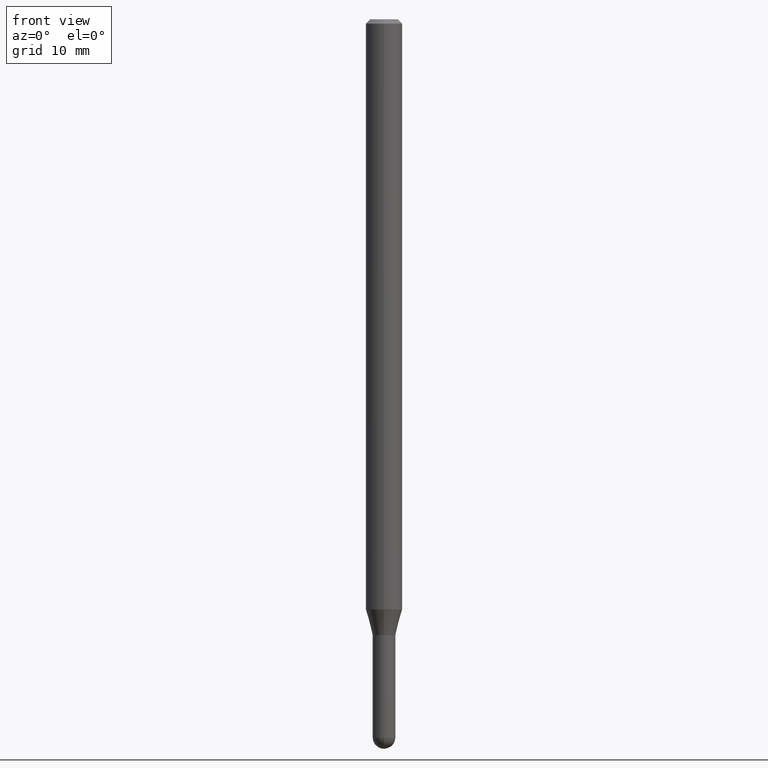
[diagram: clean part render]
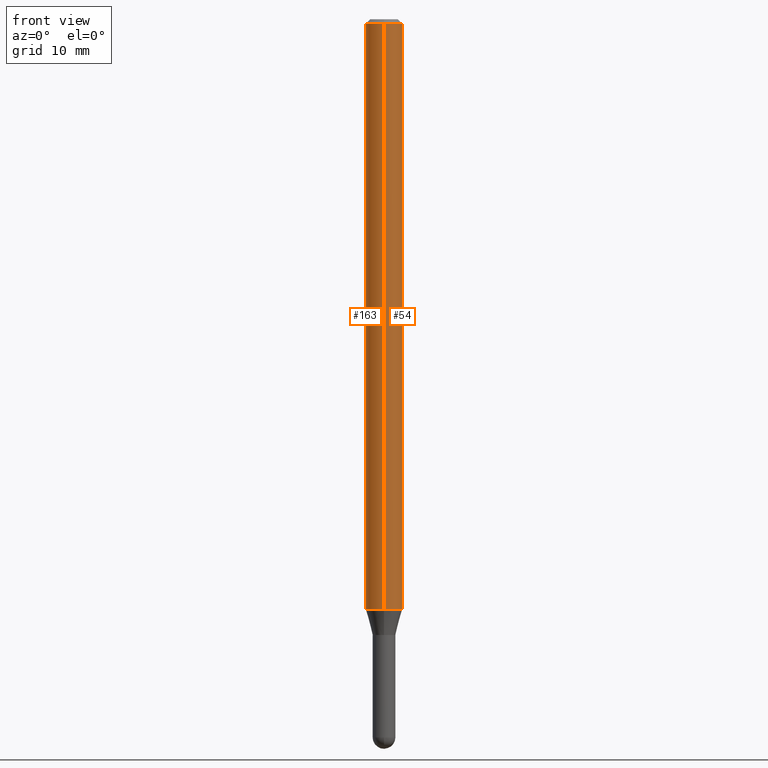
[diagram: same view with one multi-face feature highlighted, each face labeled with its STEP entity id]
A machine part, front view. The highlighted faces form ONE feature: a constant-radius fillet chain: 2 tangent blend faces with common blend radius 1.5875 mm. The faces share edges in the B-rep.
Their STEP definitions:
[1] entity #54 (Cylinder):
#12 = VECTOR ( 'NONE', #37, 39.37007874015748143 ) ;
#14 = FACE_OUTER_BOUND ( 'NONE', #507, .T. ) ;
#16 = CYLINDRICAL_SURFACE ( 'NONE', #347, 0.06250000000000000000 ) ;
#18 = DIRECTION ( 'NONE',  ( -6.982962677686265922E-15, -1.000000000000000000, 4.370956789862821150E-15 ) ) ;
#37 = DIRECTION ( 'NONE',  ( -2.445500960976067798E-29, 3.491435291352395379E-15, 1.000000000000000000 ) ) ;
#54 = ADVANCED_FACE ( 'NONE', ( #14 ), #16, .T. ) ;
#59 = DIRECTION ( 'NONE',  ( -2.445500960976067798E-29, 3.491435291352395379E-15, 1.000000000000000000 ) ) ;
#80 = ORIENTED_EDGE ( 'NONE', *, *, #133, .T. ) ;
#84 = ORIENTED_EDGE ( 'NONE', *, *, #342, .F. ) ;
#87 = CARTESIAN_POINT ( 'NONE',  ( 0.000000000000000000, 0.000000000000000000, 0.000000000000000000 ) ) ;
#89 = DIRECTION ( 'NONE',  ( -6.982962677686265922E-15, -1.000000000000000000, 3.491435291352395379E-15 ) ) ;
#106 = VERTEX_POINT ( 'NONE', #445 ) ;
#112 = DIRECTION ( 'NONE',  ( -2.445500960976067798E-29, 3.491435291352395379E-15, 1.000000000000000000 ) ) ;
#133 = EDGE_CURVE ( 'NONE', #312, #149, #443, .T. ) ;
#134 = CIRCLE ( 'NONE', #282, 0.06250000000000000000 ) ;
#149 = VERTEX_POINT ( 'NONE', #224 ) ;
#154 = DIRECTION ( 'NONE',  ( -2.445500960976067798E-29, 3.491435291352395379E-15, 1.000000000000000000 ) ) ;
#198 = CARTESIAN_POINT ( 'NONE',  ( -4.364351673553916201E-16, -0.06250000000000000000, 2.182147057095247112E-16 ) ) ;
#203 = DIRECTION ( 'NONE',  ( -2.445500960976067798E-29, 3.491435291352395379E-15, 1.000000000000000000 ) ) ;
#224 = CARTESIAN_POINT ( 'NONE',  ( 4.440892098501117228E-16, 0.06249999999999289457, -2.022296806022132909 ) ) ;
#241 = ORIENTED_EDGE ( 'NONE', *, *, #412, .T. ) ;
#281 = CARTESIAN_POINT ( 'NONE',  ( 4.440892098500625669E-16, 0.06250000000000000000, -2.182147057095247112E-16 ) ) ;
#282 = AXIS2_PLACEMENT_3D ( 'NONE', #434, #112, #464 ) ;
#287 = ORIENTED_EDGE ( 'NONE', *, *, #295, .F. ) ;
#294 = CARTESIAN_POINT ( 'NONE',  ( 4.945528782505957830E-29, -7.060718438134903621E-15, -2.022296806022132909 ) ) ;
#295 = EDGE_CURVE ( 'NONE', #312, #345, #392, .T. ) ;
#312 = VERTEX_POINT ( 'NONE', #508 ) ;
#342 = EDGE_CURVE ( 'NONE', #345, #106, #134, .T. ) ;
#345 = VERTEX_POINT ( 'NONE', #496 ) ;
#347 = AXIS2_PLACEMENT_3D ( 'NONE', #87, #203, #89 ) ;
#387 = VECTOR ( 'NONE', #154, 39.37007874015748143 ) ;
#392 = LINE ( 'NONE', #198, #12 ) ;
#412 = EDGE_CURVE ( 'NONE', #149, #106, #497, .T. ) ;
#415 = AXIS2_PLACEMENT_3D ( 'NONE', #294, #59, #18 ) ;
#434 = CARTESIAN_POINT ( 'NONE',  ( 3.668251441464117918E-31, -5.237152937028615846E-17, -0.01500000000000006710 ) ) ;
#443 = CIRCLE ( 'NONE', #415, 0.06250000000000000000 ) ;
#445 = CARTESIAN_POINT ( 'NONE',  ( 4.440892098501123144E-16, 0.06249999999999995143, -0.01500000000000028394 ) ) ;
#464 = DIRECTION ( 'NONE',  ( -6.982962677686265922E-15, -1.000000000000000000, 3.483106191921935554E-15 ) ) ;
#496 = CARTESIAN_POINT ( 'NONE',  ( -4.364351673553912750E-16, -0.06250000000000005551, -0.01499999999999984852 ) ) ;
#497 = LINE ( 'NONE', #281, #387 ) ;
#507 = EDGE_LOOP ( 'NONE', ( #80, #241, #84, #287 ) ) ;
#508 = CARTESIAN_POINT ( 'NONE',  ( -4.364351673553424642E-16, -0.06250000000000709155, -2.022296806022132465 ) ) ;
[2] entity #163 (Cylinder):
#12 = VECTOR ( 'NONE', #37, 39.37007874015748143 ) ;
#37 = DIRECTION ( 'NONE',  ( -2.445500960976067798E-29, 3.491435291352395379E-15, 1.000000000000000000 ) ) ;
#74 = EDGE_LOOP ( 'NONE', ( #354, #130, #119, #125 ) ) ;
#97 = CARTESIAN_POINT ( 'NONE',  ( 0.000000000000000000, 0.000000000000000000, 0.000000000000000000 ) ) ;
#106 = VERTEX_POINT ( 'NONE', #445 ) ;
#119 = ORIENTED_EDGE ( 'NONE', *, *, #295, .T. ) ;
#125 = ORIENTED_EDGE ( 'NONE', *, *, #418, .F. ) ;
#128 = AXIS2_PLACEMENT_3D ( 'NONE', #97, #214, #141 ) ;
#130 = ORIENTED_EDGE ( 'NONE', *, *, #201, .T. ) ;
#141 = DIRECTION ( 'NONE',  ( -6.982962677686265922E-15, -1.000000000000000000, 3.491435291352395379E-15 ) ) ;
#144 = CARTESIAN_POINT ( 'NONE',  ( 3.668251441464117918E-31, -5.237152937028615846E-17, -0.01500000000000006710 ) ) ;
#149 = VERTEX_POINT ( 'NONE', #224 ) ;
#154 = DIRECTION ( 'NONE',  ( -2.445500960976067798E-29, 3.491435291352395379E-15, 1.000000000000000000 ) ) ;
#163 = ADVANCED_FACE ( 'NONE', ( #216 ), #260, .T. ) ;
#169 = CIRCLE ( 'NONE', #237, 0.06250000000000000000 ) ;
#175 = DIRECTION ( 'NONE',  ( -2.445500960976067798E-29, 3.491435291352395379E-15, 1.000000000000000000 ) ) ;
#198 = CARTESIAN_POINT ( 'NONE',  ( -4.364351673553916201E-16, -0.06250000000000000000, 2.182147057095247112E-16 ) ) ;
#201 = EDGE_CURVE ( 'NONE', #149, #312, #270, .T. ) ;
#211 = AXIS2_PLACEMENT_3D ( 'NONE', #449, #175, #491 ) ;
#214 = DIRECTION ( 'NONE',  ( -2.445500960976067798E-29, 3.491435291352395379E-15, 1.000000000000000000 ) ) ;
#216 = FACE_OUTER_BOUND ( 'NONE', #74, .T. ) ;
#224 = CARTESIAN_POINT ( 'NONE',  ( 4.440892098501117228E-16, 0.06249999999999289457, -2.022296806022132909 ) ) ;
#237 = AXIS2_PLACEMENT_3D ( 'NONE', #144, #315, #500 ) ;
#260 = CYLINDRICAL_SURFACE ( 'NONE', #128, 0.06250000000000000000 ) ;
#270 = CIRCLE ( 'NONE', #211, 0.06250000000000000000 ) ;
#281 = CARTESIAN_POINT ( 'NONE',  ( 4.440892098500625669E-16, 0.06250000000000000000, -2.182147057095247112E-16 ) ) ;
#295 = EDGE_CURVE ( 'NONE', #312, #345, #392, .T. ) ;
#312 = VERTEX_POINT ( 'NONE', #508 ) ;
#315 = DIRECTION ( 'NONE',  ( -2.445500960976067798E-29, 3.491435291352395379E-15, 1.000000000000000000 ) ) ;
#345 = VERTEX_POINT ( 'NONE', #496 ) ;
#354 = ORIENTED_EDGE ( 'NONE', *, *, #412, .F. ) ;
#387 = VECTOR ( 'NONE', #154, 39.37007874015748143 ) ;
#392 = LINE ( 'NONE', #198, #12 ) ;
#412 = EDGE_CURVE ( 'NONE', #149, #106, #497, .T. ) ;
#418 = EDGE_CURVE ( 'NONE', #106, #345, #169, .T. ) ;
#445 = CARTESIAN_POINT ( 'NONE',  ( 4.440892098501123144E-16, 0.06249999999999995143, -0.01500000000000028394 ) ) ;
#449 = CARTESIAN_POINT ( 'NONE',  ( 4.945528782505957830E-29, -7.060718438134903621E-15, -2.022296806022132909 ) ) ;
#491 = DIRECTION ( 'NONE',  ( -6.982962677686265922E-15, -1.000000000000000000, 4.370956789862821150E-15 ) ) ;
#496 = CARTESIAN_POINT ( 'NONE',  ( -4.364351673553912750E-16, -0.06250000000000005551, -0.01499999999999984852 ) ) ;
#497 = LINE ( 'NONE', #281, #387 ) ;
#500 = DIRECTION ( 'NONE',  ( -6.982962677686265922E-15, -1.000000000000000000, 3.483106191921935554E-15 ) ) ;
#508 = CARTESIAN_POINT ( 'NONE',  ( -4.364351673553424642E-16, -0.06250000000000709155, -2.022296806022132465 ) ) ;